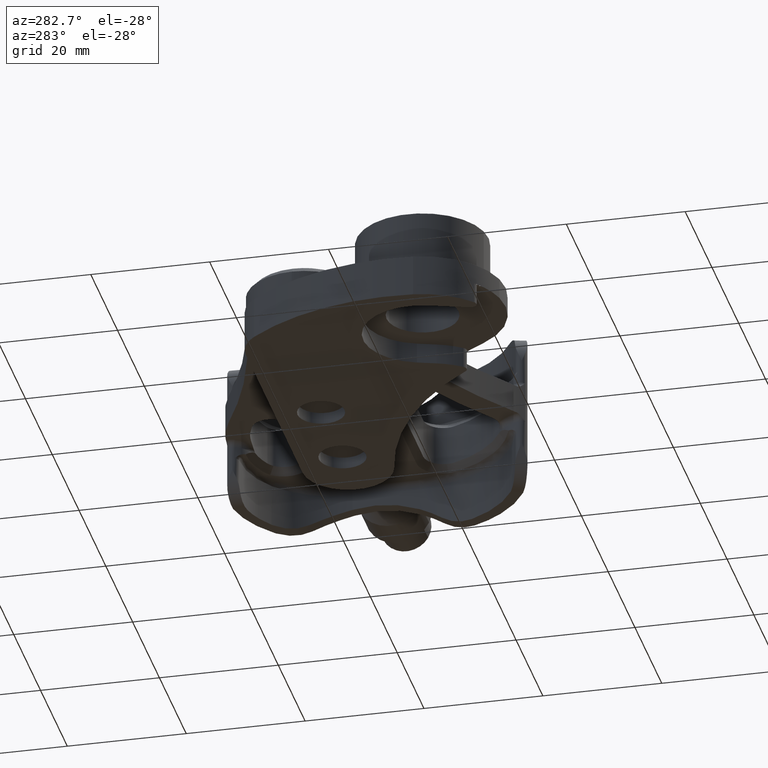
[diagram: clean part render]
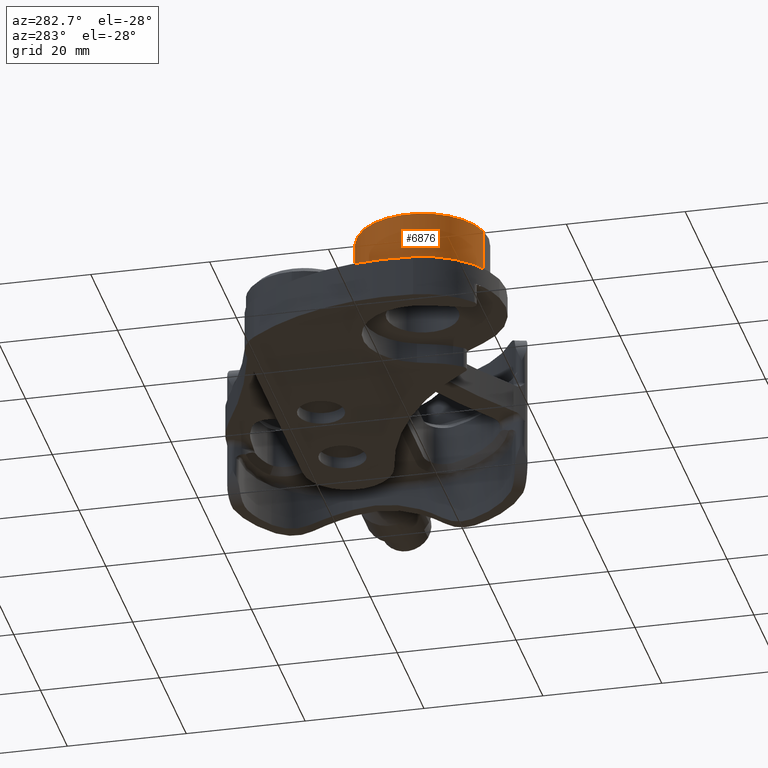
[diagram: same view with one face highlighted and labeled with its STEP entity id]
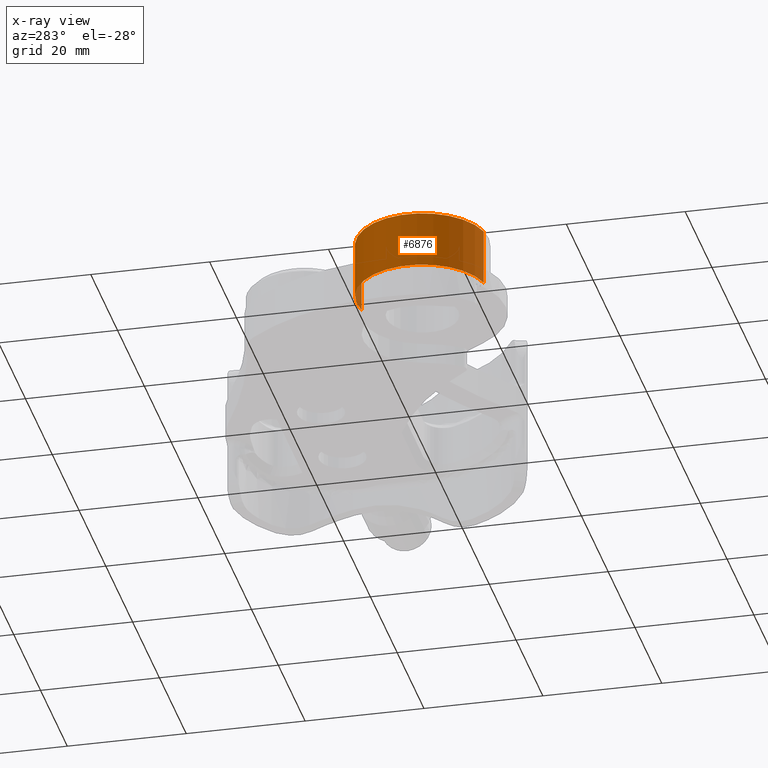
[diagram: x-ray of the same camera — body ghosted, the highlighted face saturated]
A machine part, auxiliary view. The second image highlights one B-rep face of the part: STEP entity #6876.
The next image is the same camera in x-ray: the body ghosted, the highlighted face saturated — about 2% of this face is hidden behind the body in this view.
In plain terms, the highlighted cylindrical surface (partial cylindrical patch) has radius 11.1125 mm, axis along (-0, 0, -1).
Its self-contained STEP definition (entity closure, byte-faithful):
#266 = VERTEX_POINT ( 'NONE', #4488 ) ;
#339 = DIRECTION ( 'NONE',  ( 3.791462725718489111E-29, 8.600432759655641827E-30, -1.000000000000000000 ) ) ;
#501 = CARTESIAN_POINT ( 'NONE',  ( 4.183806205146007429, -0.6521396501030000126, 0.6500000000000001332 ) ) ;
#599 = VERTEX_POINT ( 'NONE', #501 ) ;
#1077 = CYLINDRICAL_SURFACE ( 'NONE', #3913, 0.4375000000000004441 ) ;
#1104 = EDGE_CURVE ( 'NONE', #599, #1277, #1958, .T. ) ;
#1277 = VERTEX_POINT ( 'NONE', #1836 ) ;
#1523 = FACE_OUTER_BOUND ( 'NONE', #2463, .T. ) ;
#1719 = EDGE_CURVE ( 'NONE', #266, #9417, #5928, .T. ) ;
#1836 = CARTESIAN_POINT ( 'NONE',  ( 4.183806205146007429, -0.6521396501030000126, 0.2750000000000001887 ) ) ;
#1958 = LINE ( 'NONE', #2459, #4200 ) ;
#2065 = AXIS2_PLACEMENT_3D ( 'NONE', #2228, #7413, #2991 ) ;
#2228 = CARTESIAN_POINT ( 'NONE',  ( 4.621306205146007429, -0.6521396501030000126, 0.2750000000000001887 ) ) ;
#2269 = CARTESIAN_POINT ( 'NONE',  ( 4.621306205146007429, -0.6521396501030000126, 0.6500000000000001332 ) ) ;
#2459 = CARTESIAN_POINT ( 'NONE',  ( 4.183806205146006540, -0.6521396501030000126, 0.6500000000000001332 ) ) ;
#2463 = EDGE_LOOP ( 'NONE', ( #4971, #6995, #5775, #7266 ) ) ;
#2914 = DIRECTION ( 'NONE',  ( 3.791462725718489111E-29, 8.600432759655641827E-30, -1.000000000000000000 ) ) ;
#2991 = DIRECTION ( 'NONE',  ( 1.000000000000000000, 0.0000000000000000000, 0.0000000000000000000 ) ) ;
#3018 = DIRECTION ( 'NONE',  ( 1.000000000000000000, 0.0000000000000000000, 0.0000000000000000000 ) ) ;
#3076 = AXIS2_PLACEMENT_3D ( 'NONE', #2269, #7444, #3018 ) ;
#3418 = CIRCLE ( 'NONE', #3076, 0.4375000000000004441 ) ;
#3655 = DIRECTION ( 'NONE',  ( 3.791462725718489111E-29, 8.600432759655641827E-30, -1.000000000000000000 ) ) ;
#3913 = AXIS2_PLACEMENT_3D ( 'NONE', #7347, #2914, #9465 ) ;
#3969 = VECTOR ( 'NONE', #3655, 39.37007874015748143 ) ;
#4200 = VECTOR ( 'NONE', #339, 39.37007874015748143 ) ;
#4488 = CARTESIAN_POINT ( 'NONE',  ( 5.058806205146007429, -0.6521396501029999015, 0.6500000000000001332 ) ) ;
#4971 = ORIENTED_EDGE ( 'NONE', *, *, #6487, .F. ) ;
#5775 = ORIENTED_EDGE ( 'NONE', *, *, #6469, .T. ) ;
#5928 = LINE ( 'NONE', #7043, #3969 ) ;
#6469 = EDGE_CURVE ( 'NONE', #9417, #1277, #8812, .T. ) ;
#6487 = EDGE_CURVE ( 'NONE', #266, #599, #3418, .T. ) ;
#6876 = ADVANCED_FACE ( 'NONE', ( #1523 ), #1077, .T. ) ;
#6995 = ORIENTED_EDGE ( 'NONE', *, *, #1719, .T. ) ;
#7043 = CARTESIAN_POINT ( 'NONE',  ( 5.058806205146007429, -0.6521396501029999015, 0.6500000000000001332 ) ) ;
#7266 = ORIENTED_EDGE ( 'NONE', *, *, #1104, .F. ) ;
#7347 = CARTESIAN_POINT ( 'NONE',  ( 4.621306205146007429, -0.6521396501030000126, 0.6500000000000001332 ) ) ;
#7413 = DIRECTION ( 'NONE',  ( -3.793927916047303652E-29, -8.614299455255228524E-30, 1.000000000000000000 ) ) ;
#7444 = DIRECTION ( 'NONE',  ( -3.793927916047303652E-29, -8.614299455255228524E-30, 1.000000000000000000 ) ) ;
#8812 = CIRCLE ( 'NONE', #2065, 0.4375000000000004441 ) ;
#9417 = VERTEX_POINT ( 'NONE', #9457 ) ;
#9457 = CARTESIAN_POINT ( 'NONE',  ( 5.058806205146007429, -0.6521396501029999015, 0.2750000000000001887 ) ) ;
#9465 = DIRECTION ( 'NONE',  ( -1.000000000000000000, 0.0000000000000000000, 0.0000000000000000000 ) ) ;